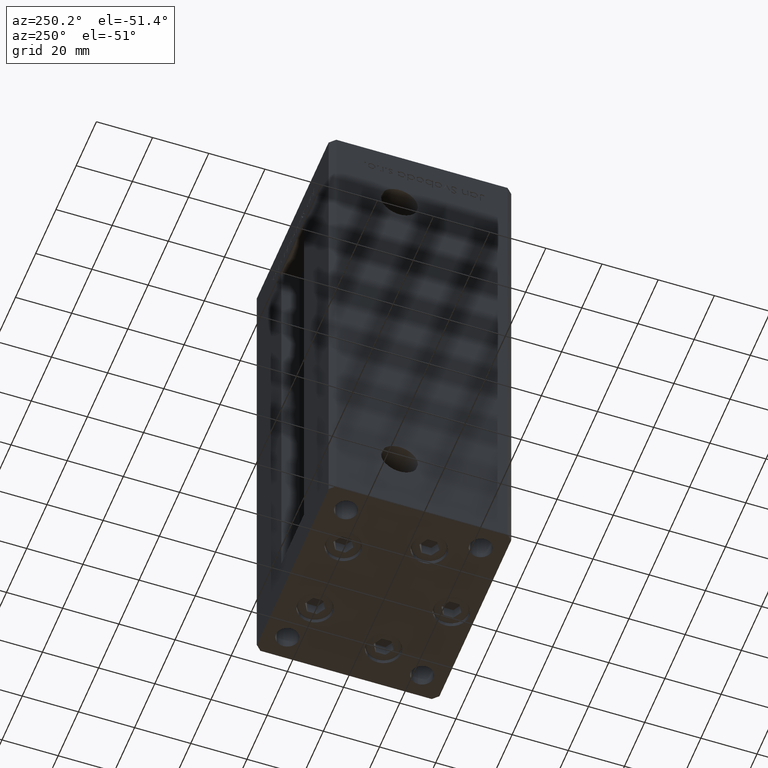
[diagram: clean part render]
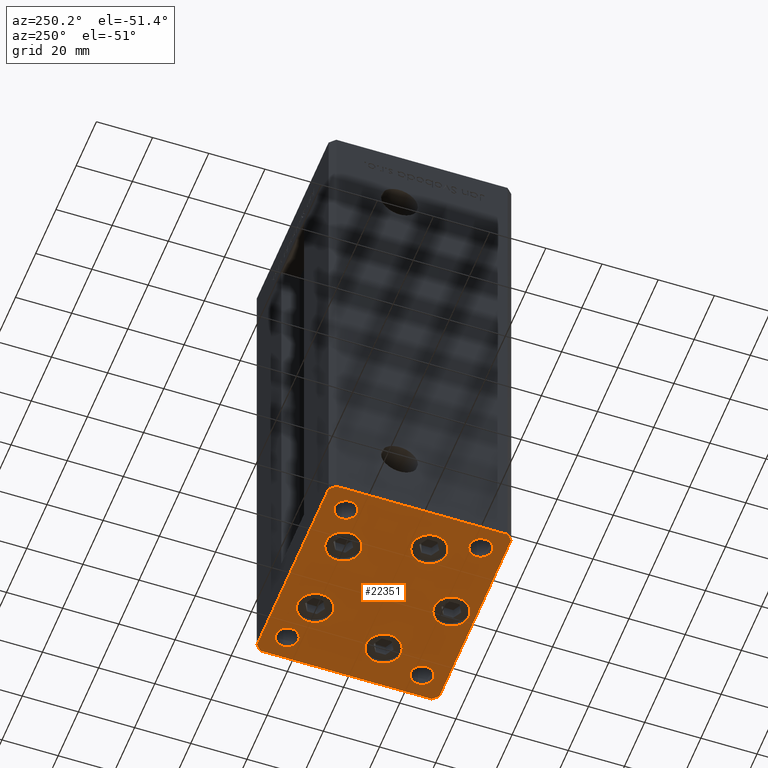
[diagram: same view with one face highlighted and labeled with its STEP entity id]
A machine part, auxiliary view. The second image highlights one B-rep face of the part: STEP entity #22351.
In plain terms, the highlighted planar face has unit normal (0, 0, -1).
Its self-contained STEP definition (entity closure, byte-faithful):
#155 = DIRECTION ( 'NONE',  ( 0.000000000000000000, -0.000000000000000000, -1.000000000000000000 ) ) ;
#1155 = CARTESIAN_POINT ( 'NONE',  ( 33.00000000000001421, -23.99999999999999289, 0.000000000000000000 ) ) ;
#1363 = LINE ( 'NONE', #30689, #31549 ) ;
#1486 = DIRECTION ( 'NONE',  ( 0.000000000000000000, -0.000000000000000000, -1.000000000000000000 ) ) ;
#1494 = LINE ( 'NONE', #10182, #8414 ) ;
#1642 = VERTEX_POINT ( 'NONE', #20312 ) ;
#1998 = CIRCLE ( 'NONE', #30594, 4.000000000000003553 ) ;
#2013 = EDGE_LOOP ( 'NONE', ( #7602, #12820 ) ) ;
#2060 = VERTEX_POINT ( 'NONE', #28928 ) ;
#2374 = DIRECTION ( 'NONE',  ( -0.000000000000000000, 0.000000000000000000, 1.000000000000000000 ) ) ;
#2536 = VERTEX_POINT ( 'NONE', #4285 ) ;
#2584 = DIRECTION ( 'NONE',  ( 0.7071067811865474617, -0.7071067811865474617, 0.000000000000000000 ) ) ;
#3030 = AXIS2_PLACEMENT_3D ( 'NONE', #49818, #9312, #12590 ) ;
#3069 = EDGE_CURVE ( 'NONE', #2060, #15341, #30259, .T. ) ;
#3143 = VERTEX_POINT ( 'NONE', #18294 ) ;
#3306 = EDGE_CURVE ( 'NONE', #5795, #10952, #21253, .T. ) ;
#3336 = AXIS2_PLACEMENT_3D ( 'NONE', #33388, #25233, #45896 ) ;
#3931 = VERTEX_POINT ( 'NONE', #29748 ) ;
#4208 = VERTEX_POINT ( 'NONE', #50315 ) ;
#4285 = CARTESIAN_POINT ( 'NONE',  ( -20.24106857963322881, 19.49999999999999645, 0.000000000000000000 ) ) ;
#4601 = CIRCLE ( 'NONE', #49715, 6.250000000000001776 ) ;
#4636 = EDGE_CURVE ( 'NONE', #3931, #4208, #38589, .T. ) ;
#5164 = DIRECTION ( 'NONE',  ( 1.000000000000000000, 0.000000000000000000, 0.000000000000000000 ) ) ;
#5324 = VERTEX_POINT ( 'NONE', #26106 ) ;
#5781 = VERTEX_POINT ( 'NONE', #40148 ) ;
#5795 = VERTEX_POINT ( 'NONE', #31997 ) ;
#6283 = CARTESIAN_POINT ( 'NONE',  ( 22.62741699796951877, -8.000000000000000000, 0.000000000000000000 ) ) ;
#6789 = DIRECTION ( 'NONE',  ( 1.000000000000000000, 0.000000000000000000, 0.000000000000000000 ) ) ;
#6848 = AXIS2_PLACEMENT_3D ( 'NONE', #53516, #16280, #6789 ) ;
#6922 = ORIENTED_EDGE ( 'NONE', *, *, #46253, .T. ) ;
#7162 = CARTESIAN_POINT ( 'NONE',  ( 6.250000000000002665, -24.00000000000000000, 0.000000000000000000 ) ) ;
#7602 = ORIENTED_EDGE ( 'NONE', *, *, #34868, .F. ) ;
#7712 = CIRCLE ( 'NONE', #6848, 6.250000000000000000 ) ;
#7921 = CARTESIAN_POINT ( 'NONE',  ( -28.87741699796952233, -8.000000000000005329, 0.000000000000000000 ) ) ;
#8083 = EDGE_CURVE ( 'NONE', #18837, #2060, #48730, .T. ) ;
#8374 = AXIS2_PLACEMENT_3D ( 'NONE', #43176, #28221, #12169 ) ;
#8414 = VECTOR ( 'NONE', #38976, 1000.000000000000000 ) ;
#8450 = EDGE_CURVE ( 'NONE', #2536, #47483, #10414, .T. ) ;
#9019 = DIRECTION ( 'NONE',  ( 0.000000000000000000, -0.000000000000000000, -1.000000000000000000 ) ) ;
#9312 = DIRECTION ( 'NONE',  ( 0.000000000000000000, -0.000000000000000000, -1.000000000000000000 ) ) ;
#9650 = CARTESIAN_POINT ( 'NONE',  ( 7.741068579633223479, 19.50000000000000000, 0.000000000000000000 ) ) ;
#9654 = ORIENTED_EDGE ( 'NONE', *, *, #21136, .T. ) ;
#9765 = CARTESIAN_POINT ( 'NONE',  ( 29.00000000000001066, -23.99999999999999289, 0.000000000000000000 ) ) ;
#10081 = ORIENTED_EDGE ( 'NONE', *, *, #30216, .F. ) ;
#10182 = CARTESIAN_POINT ( 'NONE',  ( 35.49999999999992184, 32.50000000000000711, 0.000000000000000000 ) ) ;
#10317 = EDGE_LOOP ( 'NONE', ( #37735, #20043 ) ) ;
#10412 = ORIENTED_EDGE ( 'NONE', *, *, #38925, .T. ) ;
#10414 = CIRCLE ( 'NONE', #46872, 6.250000000000000000 ) ;
#10952 = VERTEX_POINT ( 'NONE', #48462 ) ;
#11167 = CARTESIAN_POINT ( 'NONE',  ( -37.49999999999998579, -30.50000000000001421, 0.000000000000000000 ) ) ;
#11392 = CARTESIAN_POINT ( 'NONE',  ( 16.37741699796951877, -8.000000000000000000, 0.000000000000000000 ) ) ;
#11863 = ORIENTED_EDGE ( 'NONE', *, *, #27717, .T. ) ;
#12078 = AXIS2_PLACEMENT_3D ( 'NONE', #52277, #19389, #52013 ) ;
#12169 = DIRECTION ( 'NONE',  ( 1.000000000000000000, 0.000000000000000000, 0.000000000000000000 ) ) ;
#12180 = DIRECTION ( 'NONE',  ( -0.000000000000000000, 0.000000000000000000, 1.000000000000000000 ) ) ;
#12201 = EDGE_LOOP ( 'NONE', ( #47356, #16150 ) ) ;
#12377 = DIRECTION ( 'NONE',  ( 1.000000000000000000, 0.000000000000000000, 0.000000000000000000 ) ) ;
#12461 = ORIENTED_EDGE ( 'NONE', *, *, #34566, .T. ) ;
#12590 = DIRECTION ( 'NONE',  ( 1.000000000000000000, 0.000000000000000000, 0.000000000000000000 ) ) ;
#12662 = CARTESIAN_POINT ( 'NONE',  ( -29.00000000000001066, -23.99999999999999289, 0.000000000000000000 ) ) ;
#12785 = DIRECTION ( 'NONE',  ( 1.000000000000000000, 0.000000000000000000, 0.000000000000000000 ) ) ;
#12820 = ORIENTED_EDGE ( 'NONE', *, *, #29494, .F. ) ;
#12825 = EDGE_LOOP ( 'NONE', ( #9654, #11863 ) ) ;
#13051 = DIRECTION ( 'NONE',  ( 0.000000000000000000, -0.000000000000000000, -1.000000000000000000 ) ) ;
#13348 = CARTESIAN_POINT ( 'NONE',  ( 13.99106857963322348, 19.50000000000000000, 0.000000000000000000 ) ) ;
#13445 = CARTESIAN_POINT ( 'NONE',  ( 22.62741699796951877, -8.000000000000000000, 0.000000000000000000 ) ) ;
#13726 = ORIENTED_EDGE ( 'NONE', *, *, #3306, .T. ) ;
#14208 = CIRCLE ( 'NONE', #21168, 4.000000000000003553 ) ;
#14249 = DIRECTION ( 'NONE',  ( 1.000000000000000000, 0.000000000000000000, 0.000000000000000000 ) ) ;
#14467 = ORIENTED_EDGE ( 'NONE', *, *, #46831, .T. ) ;
#14670 = CIRCLE ( 'NONE', #12078, 6.250000000000000000 ) ;
#15341 = VERTEX_POINT ( 'NONE', #11167 ) ;
#15840 = DIRECTION ( 'NONE',  ( -0.7071067811865426878, -0.7071067811865524577, 0.000000000000000000 ) ) ;
#16150 = ORIENTED_EDGE ( 'NONE', *, *, #41118, .T. ) ;
#16280 = DIRECTION ( 'NONE',  ( 0.000000000000000000, -0.000000000000000000, -1.000000000000000000 ) ) ;
#16464 = VERTEX_POINT ( 'NONE', #51597 ) ;
#16752 = CARTESIAN_POINT ( 'NONE',  ( -33.00000000000000711, -23.99999999999999289, 0.000000000000000000 ) ) ;
#16959 = EDGE_CURVE ( 'NONE', #50917, #43549, #4601, .T. ) ;
#17014 = PLANE ( 'NONE',  #46260 ) ;
#18110 = LINE ( 'NONE', #34682, #23633 ) ;
#18294 = CARTESIAN_POINT ( 'NONE',  ( -6.249999999999997335, -24.00000000000000000, 0.000000000000000000 ) ) ;
#18636 = CIRCLE ( 'NONE', #3030, 6.250000000000001776 ) ;
#18837 = VERTEX_POINT ( 'NONE', #32219 ) ;
#18950 = CIRCLE ( 'NONE', #3336, 4.000000000000000000 ) ;
#19344 = EDGE_CURVE ( 'NONE', #4208, #37484, #18110, .T. ) ;
#19389 = DIRECTION ( 'NONE',  ( 0.000000000000000000, -0.000000000000000000, -1.000000000000000000 ) ) ;
#19531 = CARTESIAN_POINT ( 'NONE',  ( -13.99106857963322703, 19.49999999999999645, 0.000000000000000000 ) ) ;
#19631 = VERTEX_POINT ( 'NONE', #24814 ) ;
#19660 = CIRCLE ( 'NONE', #43931, 6.250000000000000000 ) ;
#19772 = AXIS2_PLACEMENT_3D ( 'NONE', #13348, #9019, #46246 ) ;
#20043 = ORIENTED_EDGE ( 'NONE', *, *, #16959, .T. ) ;
#20312 = CARTESIAN_POINT ( 'NONE',  ( 25.00000000000000711, -23.99999999999999289, 0.000000000000000000 ) ) ;
#20564 = VERTEX_POINT ( 'NONE', #23544 ) ;
#20595 = DIRECTION ( 'NONE',  ( 0.000000000000000000, -0.000000000000000000, -1.000000000000000000 ) ) ;
#20730 = CARTESIAN_POINT ( 'NONE',  ( 28.87741699796952233, -8.000000000000000000, 0.000000000000000000 ) ) ;
#20747 = EDGE_LOOP ( 'NONE', ( #49196, #34694, #52992, #29375, #13726, #36126, #37860, #44647 ) ) ;
#20832 = FACE_BOUND ( 'NONE', #12201, .T. ) ;
#20948 = DIRECTION ( 'NONE',  ( -0.000000000000000000, 0.000000000000000000, 1.000000000000000000 ) ) ;
#21087 = VERTEX_POINT ( 'NONE', #21997 ) ;
#21136 = EDGE_CURVE ( 'NONE', #38595, #1642, #1998, .T. ) ;
#21168 = AXIS2_PLACEMENT_3D ( 'NONE', #25548, #13051, #12785 ) ;
#21242 = CIRCLE ( 'NONE', #33397, 3.999999999999996447 ) ;
#21253 = LINE ( 'NONE', #37835, #38704 ) ;
#21350 = DIRECTION ( 'NONE',  ( 0.000000000000000000, -0.000000000000000000, -1.000000000000000000 ) ) ;
#21997 = CARTESIAN_POINT ( 'NONE',  ( -16.37741699796951877, -8.000000000000005329, 0.000000000000000000 ) ) ;
#22351 = ADVANCED_FACE ( 'NONE', ( #24908, #28976, #36868, #25444, #45838, #29517, #33054, #25176, #40938, #20832 ), #17014, .T. ) ;
#22395 = CARTESIAN_POINT ( 'NONE',  ( 37.50000000000001421, -30.50000000000000711, 0.000000000000000000 ) ) ;
#22769 = ORIENTED_EDGE ( 'NONE', *, *, #8450, .T. ) ;
#23140 = CIRCLE ( 'NONE', #42268, 4.000000000000000000 ) ;
#23440 = EDGE_LOOP ( 'NONE', ( #10412, #14467 ) ) ;
#23544 = CARTESIAN_POINT ( 'NONE',  ( 25.00000000000000711, 24.00000000000000711, 0.000000000000000000 ) ) ;
#23633 = VECTOR ( 'NONE', #30607, 1000.000000000000000 ) ;
#24814 = CARTESIAN_POINT ( 'NONE',  ( -33.00000000000000711, 24.00000000000000711, 0.000000000000000000 ) ) ;
#24892 = DIRECTION ( 'NONE',  ( 1.000000000000000000, 0.000000000000000000, 0.000000000000000000 ) ) ;
#24908 = FACE_BOUND ( 'NONE', #33075, .T. ) ;
#25110 = VERTEX_POINT ( 'NONE', #16752 ) ;
#25176 = FACE_BOUND ( 'NONE', #28587, .T. ) ;
#25233 = DIRECTION ( 'NONE',  ( 0.000000000000000000, -0.000000000000000000, -1.000000000000000000 ) ) ;
#25444 = FACE_BOUND ( 'NONE', #42227, .T. ) ;
#25548 = CARTESIAN_POINT ( 'NONE',  ( 29.00000000000001066, -23.99999999999999289, 0.000000000000000000 ) ) ;
#26106 = CARTESIAN_POINT ( 'NONE',  ( 20.24106857963322526, 19.50000000000000000, 0.000000000000000000 ) ) ;
#26345 = DIRECTION ( 'NONE',  ( 0.000000000000000000, -0.000000000000000000, -1.000000000000000000 ) ) ;
#27717 = EDGE_CURVE ( 'NONE', #1642, #38595, #14208, .T. ) ;
#28078 = CARTESIAN_POINT ( 'NONE',  ( -35.50000000000002842, 32.49999999999999289, 0.000000000000000000 ) ) ;
#28221 = DIRECTION ( 'NONE',  ( 0.000000000000000000, -0.000000000000000000, -1.000000000000000000 ) ) ;
#28494 = CIRCLE ( 'NONE', #51924, 3.999999999999996447 ) ;
#28587 = EDGE_LOOP ( 'NONE', ( #10081, #52787 ) ) ;
#28767 = DIRECTION ( 'NONE',  ( 1.000000000000000000, 0.000000000000000000, 0.000000000000000000 ) ) ;
#28928 = CARTESIAN_POINT ( 'NONE',  ( -37.50000000000001421, 30.49999999999998579, 0.000000000000000000 ) ) ;
#28976 = FACE_BOUND ( 'NONE', #23440, .T. ) ;
#29063 = EDGE_CURVE ( 'NONE', #43549, #50917, #36844, .T. ) ;
#29203 = DIRECTION ( 'NONE',  ( 4.550094363217855288E-16, -1.000000000000000000, 0.000000000000000000 ) ) ;
#29375 = ORIENTED_EDGE ( 'NONE', *, *, #32055, .T. ) ;
#29494 = EDGE_CURVE ( 'NONE', #20564, #5781, #35947, .T. ) ;
#29517 = FACE_BOUND ( 'NONE', #2013, .T. ) ;
#29748 = CARTESIAN_POINT ( 'NONE',  ( -35.49999999999998579, -32.50000000000001421, 0.000000000000000000 ) ) ;
#29750 = DIRECTION ( 'NONE',  ( 0.000000000000000000, -0.000000000000000000, -1.000000000000000000 ) ) ;
#30216 = EDGE_CURVE ( 'NONE', #16464, #19631, #21242, .T. ) ;
#30259 = LINE ( 'NONE', #46579, #39609 ) ;
#30292 = CARTESIAN_POINT ( 'NONE',  ( -37.49999999999998579, -30.50000000000001421, 0.000000000000000000 ) ) ;
#30594 = AXIS2_PLACEMENT_3D ( 'NONE', #9765, #26345, #34755 ) ;
#30607 = DIRECTION ( 'NONE',  ( 0.7071067811865487940, 0.7071067811865463515, 0.000000000000000000 ) ) ;
#30689 = CARTESIAN_POINT ( 'NONE',  ( 37.50000000000001421, -30.50000000000000711, 0.000000000000000000 ) ) ;
#31549 = VECTOR ( 'NONE', #38843, 1000.000000000000000 ) ;
#31905 = DIRECTION ( 'NONE',  ( -0.000000000000000000, 0.000000000000000000, 1.000000000000000000 ) ) ;
#31997 = CARTESIAN_POINT ( 'NONE',  ( 37.49999999999992184, 30.50000000000001066, 0.000000000000000000 ) ) ;
#32055 = EDGE_CURVE ( 'NONE', #37484, #5795, #1363, .T. ) ;
#32131 = VECTOR ( 'NONE', #15840, 1000.000000000000000 ) ;
#32219 = CARTESIAN_POINT ( 'NONE',  ( -35.50000000000002842, 32.49999999999999289, 0.000000000000000000 ) ) ;
#32791 = DIRECTION ( 'NONE',  ( -0.000000000000000000, 0.000000000000000000, 1.000000000000000000 ) ) ;
#33054 = FACE_BOUND ( 'NONE', #12825, .T. ) ;
#33075 = EDGE_LOOP ( 'NONE', ( #22769, #6922 ) ) ;
#33356 = AXIS2_PLACEMENT_3D ( 'NONE', #39032, #2374, #44195 ) ;
#33388 = CARTESIAN_POINT ( 'NONE',  ( -29.00000000000001066, -23.99999999999999289, 0.000000000000000000 ) ) ;
#33397 = AXIS2_PLACEMENT_3D ( 'NONE', #44810, #12180, #28767 ) ;
#33832 = DIRECTION ( 'NONE',  ( 1.000000000000000000, 0.000000000000000000, 0.000000000000000000 ) ) ;
#33970 = CARTESIAN_POINT ( 'NONE',  ( 29.00000000000001066, 24.00000000000000711, 0.000000000000000000 ) ) ;
#34566 = EDGE_CURVE ( 'NONE', #21087, #38705, #18636, .T. ) ;
#34598 = VECTOR ( 'NONE', #2584, 1000.000000000000114 ) ;
#34682 = CARTESIAN_POINT ( 'NONE',  ( 35.50000000000000711, -32.50000000000000711, 0.000000000000000000 ) ) ;
#34694 = ORIENTED_EDGE ( 'NONE', *, *, #4636, .T. ) ;
#34755 = DIRECTION ( 'NONE',  ( 1.000000000000000000, 0.000000000000000000, 0.000000000000000000 ) ) ;
#34868 = EDGE_CURVE ( 'NONE', #5781, #20564, #42949, .T. ) ;
#35278 = ORIENTED_EDGE ( 'NONE', *, *, #39648, .T. ) ;
#35355 = DIRECTION ( 'NONE',  ( 1.000000000000000000, 0.000000000000000000, 0.000000000000000000 ) ) ;
#35947 = CIRCLE ( 'NONE', #33356, 4.000000000000003553 ) ;
#36126 = ORIENTED_EDGE ( 'NONE', *, *, #41186, .T. ) ;
#36844 = CIRCLE ( 'NONE', #38531, 6.250000000000001776 ) ;
#36868 = FACE_BOUND ( 'NONE', #10317, .T. ) ;
#36880 = VERTEX_POINT ( 'NONE', #7162 ) ;
#37484 = VERTEX_POINT ( 'NONE', #22395 ) ;
#37735 = ORIENTED_EDGE ( 'NONE', *, *, #29063, .T. ) ;
#37835 = CARTESIAN_POINT ( 'NONE',  ( 37.49999999999992184, 30.50000000000001066, 0.000000000000000000 ) ) ;
#37860 = ORIENTED_EDGE ( 'NONE', *, *, #8083, .T. ) ;
#38531 = AXIS2_PLACEMENT_3D ( 'NONE', #6283, #39436, #35355 ) ;
#38589 = LINE ( 'NONE', #44492, #41389 ) ;
#38595 = VERTEX_POINT ( 'NONE', #1155 ) ;
#38704 = VECTOR ( 'NONE', #50335, 999.9999999999998863 ) ;
#38705 = VERTEX_POINT ( 'NONE', #7921 ) ;
#38715 = CIRCLE ( 'NONE', #8374, 6.250000000000000000 ) ;
#38843 = DIRECTION ( 'NONE',  ( -1.478780668045802821E-15, 1.000000000000000000, 0.000000000000000000 ) ) ;
#38925 = EDGE_CURVE ( 'NONE', #45447, #5324, #19660, .T. ) ;
#38976 = DIRECTION ( 'NONE',  ( -1.000000000000000000, -1.954618001100629052E-16, 0.000000000000000000 ) ) ;
#38978 = LINE ( 'NONE', #30292, #34598 ) ;
#39032 = CARTESIAN_POINT ( 'NONE',  ( 29.00000000000001066, 24.00000000000000711, 0.000000000000000000 ) ) ;
#39150 = EDGE_CURVE ( 'NONE', #38705, #21087, #44832, .T. ) ;
#39436 = DIRECTION ( 'NONE',  ( 0.000000000000000000, -0.000000000000000000, -1.000000000000000000 ) ) ;
#39609 = VECTOR ( 'NONE', #29203, 1000.000000000000000 ) ;
#39648 = EDGE_CURVE ( 'NONE', #3143, #36880, #38715, .T. ) ;
#40148 = CARTESIAN_POINT ( 'NONE',  ( 33.00000000000001421, 24.00000000000000711, 0.000000000000000000 ) ) ;
#40938 = FACE_OUTER_BOUND ( 'NONE', #20747, .T. ) ;
#41118 = EDGE_CURVE ( 'NONE', #25110, #51492, #23140, .T. ) ;
#41186 = EDGE_CURVE ( 'NONE', #10952, #18837, #1494, .T. ) ;
#41389 = VECTOR ( 'NONE', #52652, 1000.000000000000000 ) ;
#41467 = EDGE_LOOP ( 'NONE', ( #44546, #12461 ) ) ;
#41743 = CARTESIAN_POINT ( 'NONE',  ( 0.000000000000000000, 0.000000000000000000, 0.000000000000000000 ) ) ;
#41978 = CARTESIAN_POINT ( 'NONE',  ( -22.62741699796951877, -8.000000000000005329, 0.000000000000000000 ) ) ;
#42227 = EDGE_LOOP ( 'NONE', ( #35278, #48109 ) ) ;
#42268 = AXIS2_PLACEMENT_3D ( 'NONE', #12662, #21350, #24892 ) ;
#42949 = CIRCLE ( 'NONE', #48168, 4.000000000000003553 ) ;
#43176 = CARTESIAN_POINT ( 'NONE',  ( 2.939152317953647500E-15, -24.00000000000000000, 0.000000000000000000 ) ) ;
#43446 = CARTESIAN_POINT ( 'NONE',  ( -25.00000000000001066, -23.99999999999999289, 0.000000000000000000 ) ) ;
#43549 = VERTEX_POINT ( 'NONE', #11392 ) ;
#43931 = AXIS2_PLACEMENT_3D ( 'NONE', #46134, #20595, #46399 ) ;
#44195 = DIRECTION ( 'NONE',  ( 1.000000000000000000, 0.000000000000000000, 0.000000000000000000 ) ) ;
#44264 = EDGE_CURVE ( 'NONE', #19631, #16464, #28494, .T. ) ;
#44492 = CARTESIAN_POINT ( 'NONE',  ( -35.49999999999998579, -32.50000000000001421, 0.000000000000000000 ) ) ;
#44546 = ORIENTED_EDGE ( 'NONE', *, *, #39150, .T. ) ;
#44582 = EDGE_CURVE ( 'NONE', #51492, #25110, #18950, .T. ) ;
#44647 = ORIENTED_EDGE ( 'NONE', *, *, #3069, .T. ) ;
#44810 = CARTESIAN_POINT ( 'NONE',  ( -29.00000000000001066, 24.00000000000000711, 0.000000000000000000 ) ) ;
#44832 = CIRCLE ( 'NONE', #50874, 6.250000000000001776 ) ;
#45447 = VERTEX_POINT ( 'NONE', #9650 ) ;
#45838 = FACE_BOUND ( 'NONE', #41467, .T. ) ;
#45896 = DIRECTION ( 'NONE',  ( 1.000000000000000000, 0.000000000000000000, 0.000000000000000000 ) ) ;
#46134 = CARTESIAN_POINT ( 'NONE',  ( 13.99106857963322348, 19.50000000000000000, 0.000000000000000000 ) ) ;
#46246 = DIRECTION ( 'NONE',  ( 1.000000000000000000, 0.000000000000000000, 0.000000000000000000 ) ) ;
#46253 = EDGE_CURVE ( 'NONE', #47483, #2536, #7712, .T. ) ;
#46260 = AXIS2_PLACEMENT_3D ( 'NONE', #41743, #32791, #49376 ) ;
#46335 = DIRECTION ( 'NONE',  ( 1.000000000000000000, 0.000000000000000000, 0.000000000000000000 ) ) ;
#46399 = DIRECTION ( 'NONE',  ( 1.000000000000000000, 0.000000000000000000, 0.000000000000000000 ) ) ;
#46579 = CARTESIAN_POINT ( 'NONE',  ( -37.50000000000001421, 30.49999999999998579, 0.000000000000000000 ) ) ;
#46831 = EDGE_CURVE ( 'NONE', #5324, #45447, #48390, .T. ) ;
#46872 = AXIS2_PLACEMENT_3D ( 'NONE', #19531, #155, #12377 ) ;
#47356 = ORIENTED_EDGE ( 'NONE', *, *, #44582, .T. ) ;
#47483 = VERTEX_POINT ( 'NONE', #48555 ) ;
#47771 = EDGE_CURVE ( 'NONE', #15341, #3931, #38978, .T. ) ;
#48109 = ORIENTED_EDGE ( 'NONE', *, *, #50771, .T. ) ;
#48168 = AXIS2_PLACEMENT_3D ( 'NONE', #33970, #20948, #5164 ) ;
#48390 = CIRCLE ( 'NONE', #19772, 6.250000000000000000 ) ;
#48462 = CARTESIAN_POINT ( 'NONE',  ( 35.49999999999992184, 32.50000000000000711, 0.000000000000000000 ) ) ;
#48555 = CARTESIAN_POINT ( 'NONE',  ( -7.741068579633227031, 19.49999999999999645, 0.000000000000000000 ) ) ;
#48730 = LINE ( 'NONE', #28078, #32131 ) ;
#49196 = ORIENTED_EDGE ( 'NONE', *, *, #47771, .T. ) ;
#49376 = DIRECTION ( 'NONE',  ( 1.000000000000000000, 0.000000000000000000, 0.000000000000000000 ) ) ;
#49715 = AXIS2_PLACEMENT_3D ( 'NONE', #13445, #1486, #33832 ) ;
#49818 = CARTESIAN_POINT ( 'NONE',  ( -22.62741699796951877, -8.000000000000005329, 0.000000000000000000 ) ) ;
#50315 = CARTESIAN_POINT ( 'NONE',  ( 35.50000000000000711, -32.50000000000000711, 0.000000000000000000 ) ) ;
#50335 = DIRECTION ( 'NONE',  ( -0.7071067811865482389, 0.7071067811865469066, 0.000000000000000000 ) ) ;
#50771 = EDGE_CURVE ( 'NONE', #36880, #3143, #14670, .T. ) ;
#50874 = AXIS2_PLACEMENT_3D ( 'NONE', #41978, #29750, #46335 ) ;
#50917 = VERTEX_POINT ( 'NONE', #20730 ) ;
#51486 = CARTESIAN_POINT ( 'NONE',  ( -29.00000000000001066, 24.00000000000000711, 0.000000000000000000 ) ) ;
#51492 = VERTEX_POINT ( 'NONE', #43446 ) ;
#51597 = CARTESIAN_POINT ( 'NONE',  ( -25.00000000000001421, 24.00000000000000711, 0.000000000000000000 ) ) ;
#51924 = AXIS2_PLACEMENT_3D ( 'NONE', #51486, #31905, #14249 ) ;
#52013 = DIRECTION ( 'NONE',  ( 1.000000000000000000, 0.000000000000000000, 0.000000000000000000 ) ) ;
#52277 = CARTESIAN_POINT ( 'NONE',  ( 2.939152317953647500E-15, -24.00000000000000000, 0.000000000000000000 ) ) ;
#52652 = DIRECTION ( 'NONE',  ( 1.000000000000000000, 9.773090005503140331E-17, 0.000000000000000000 ) ) ;
#52787 = ORIENTED_EDGE ( 'NONE', *, *, #44264, .F. ) ;
#52992 = ORIENTED_EDGE ( 'NONE', *, *, #19344, .T. ) ;
#53516 = CARTESIAN_POINT ( 'NONE',  ( -13.99106857963322703, 19.49999999999999645, 0.000000000000000000 ) ) ;